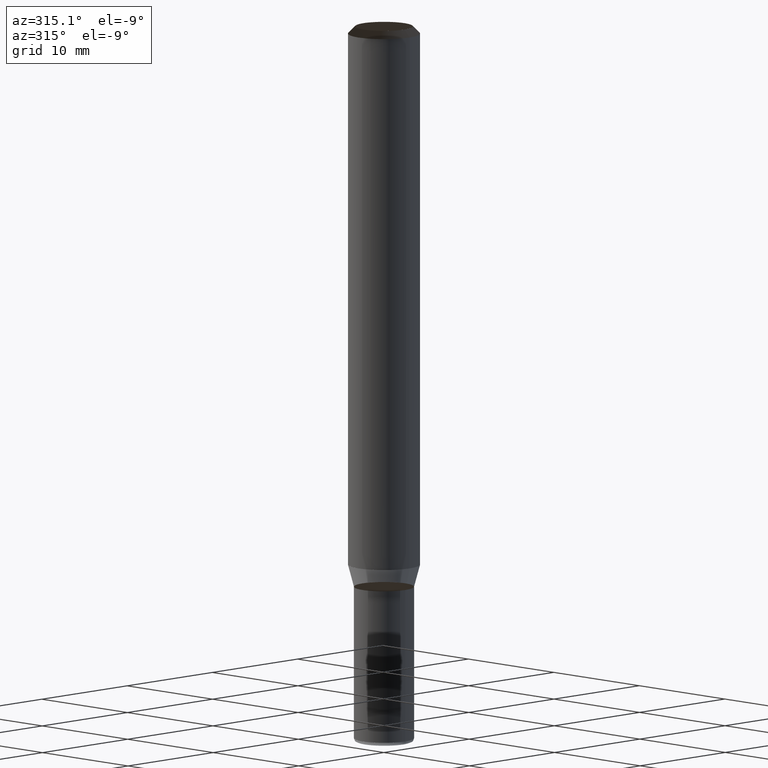
[diagram: clean part render]
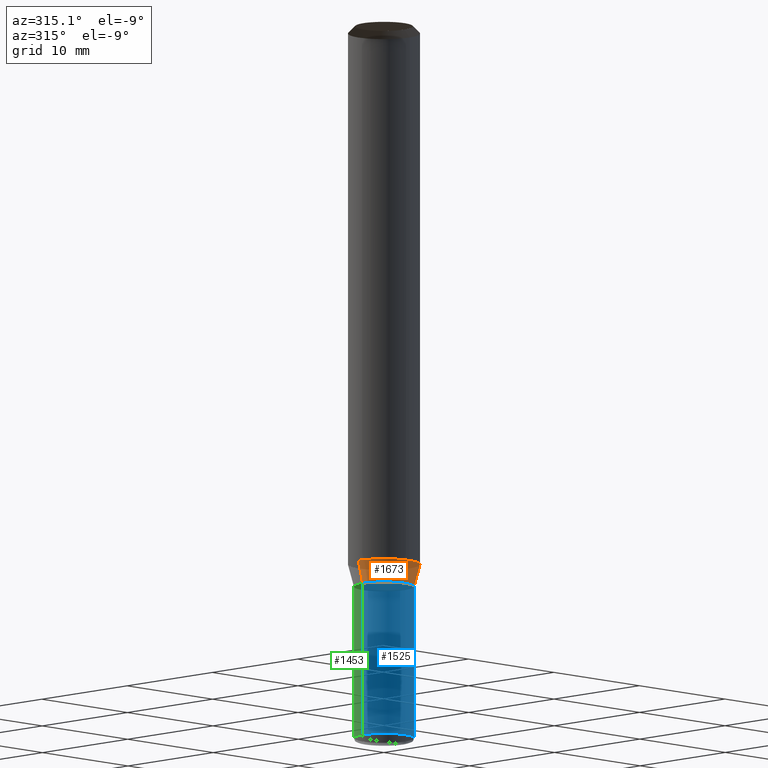
[diagram: same view with three faces highlighted in distinct colors, each labeled with its STEP entity id]
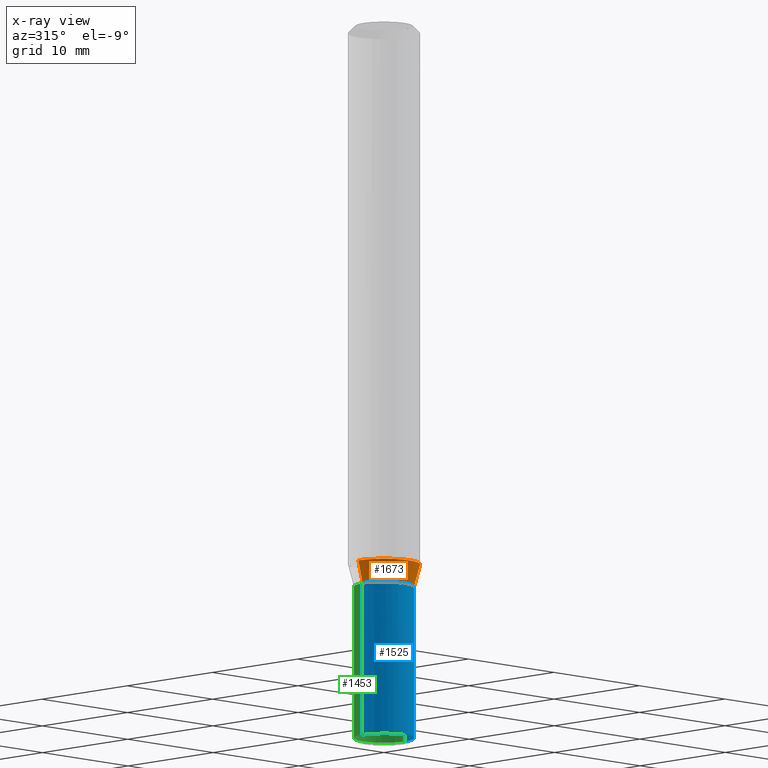
[diagram: x-ray of the same camera — body ghosted, the three highlighted faces saturated]
A machine part, auxiliary view with three faces highlighted in distinct colors.
The next image is the same camera in x-ray (body ghosted, the three faces saturated) — at least one of them is partly hidden behind the body in this view.
Their STEP definitions:

[orange] entity #1673 — the highlighted face is a freeform B-spline surface patch.
#1340=CARTESIAN_POINT('',(2.5,0.0,-1.866025403784));
#1344=CARTESIAN_POINT('',(-2.5,0.0,-1.866025403784));
#1361=CARTESIAN_POINT('',(-2.5,-2.5,-1.866025403784));
#1362=CARTESIAN_POINT('',(0.0,-2.5,-1.866025403784));
#1363=CARTESIAN_POINT('',(2.5,-2.5,-1.866025403784));
#1364=CARTESIAN_POINT('',(3.0,0.0,0.0));
#1368=CARTESIAN_POINT('',(-3.0,0.0,0.0));
#1380=CARTESIAN_POINT('',(-3.0,-3.0,0.0));
#1381=CARTESIAN_POINT('',(0.0,-3.0,0.0));
#1382=CARTESIAN_POINT('',(3.0,-3.0,0.0));
#1654=(
BOUNDED_SURFACE()
B_SPLINE_SURFACE(1,2,(
(#1344,#1361,#1362,#1363,#1340),
(#1368,#1380,#1381,#1382,#1364)
), .UNSPECIFIED.,.F.,.F.,.F.)
B_SPLINE_SURFACE_WITH_KNOTS((2,2),(3,2,3),(
0.0,1.0),(
0.0,0.5,1.0), .UNSPECIFIED.)
GEOMETRIC_REPRESENTATION_ITEM()
RATIONAL_B_SPLINE_SURFACE(((1.0,0.707106781187,1.0,0.707106781187,1.0),
(1.0,0.707106781187,1.0,0.707106781187,1.0)
))
REPRESENTATION_ITEM('')
SURFACE()
);
#1655=(
BOUNDED_CURVE()
B_SPLINE_CURVE(1,(#1368,#1344),.UNSPECIFIED.,.F.,.F.)
B_SPLINE_CURVE_WITH_KNOTS((2,2),
(0.0,1.0),.UNSPECIFIED.)
CURVE()
GEOMETRIC_REPRESENTATION_ITEM()
RATIONAL_B_SPLINE_CURVE((1.0,1.0))
REPRESENTATION_ITEM('')
);
#1656=(
BOUNDED_CURVE()
B_SPLINE_CURVE(2,(#1344,#1361,#1362,#1363,#1340),.UNSPECIFIED.,.F.,.F.)
B_SPLINE_CURVE_WITH_KNOTS((3,2,3),
(0.0,0.5,1.0),.UNSPECIFIED.)
CURVE()
GEOMETRIC_REPRESENTATION_ITEM()
RATIONAL_B_SPLINE_CURVE((1.0,0.707106781187,1.0,0.707106781187,1.0))
REPRESENTATION_ITEM('')
);
#1657=(
BOUNDED_CURVE()
B_SPLINE_CURVE(1,(#1340,#1364),.UNSPECIFIED.,.F.,.F.)
B_SPLINE_CURVE_WITH_KNOTS((2,2),
(0.0,1.0),.UNSPECIFIED.)
CURVE()
GEOMETRIC_REPRESENTATION_ITEM()
RATIONAL_B_SPLINE_CURVE((1.0,1.0))
REPRESENTATION_ITEM('')
);
#1658=(
BOUNDED_CURVE()
B_SPLINE_CURVE(2,(#1364,#1382,#1381,#1380,#1368),.UNSPECIFIED.,.F.,.F.)
B_SPLINE_CURVE_WITH_KNOTS((3,2,3),
(0.0,0.5,1.0),.UNSPECIFIED.)
CURVE()
GEOMETRIC_REPRESENTATION_ITEM()
RATIONAL_B_SPLINE_CURVE((1.0,0.707106781187,1.0,0.707106781187,1.0))
REPRESENTATION_ITEM('')
);
#1659=VERTEX_POINT('',#1340);
#1660=VERTEX_POINT('',#1344);
#1661=VERTEX_POINT('',#1364);
#1662=VERTEX_POINT('',#1368);
#1663=EDGE_CURVE('',#1662,#1660,#1655,.T.);
#1664=EDGE_CURVE('',#1660,#1659,#1656,.T.);
#1665=EDGE_CURVE('',#1659,#1661,#1657,.T.);
#1666=EDGE_CURVE('',#1661,#1662,#1658,.T.);
#1667=ORIENTED_EDGE('',*,*,#1663,.T.);
#1668=ORIENTED_EDGE('',*,*,#1664,.T.);
#1669=ORIENTED_EDGE('',*,*,#1665,.T.);
#1670=ORIENTED_EDGE('',*,*,#1666,.T.);
#1671=EDGE_LOOP('',(#1667,#1668,#1669,#1670));
#1672=FACE_OUTER_BOUND('',#1671,.T.);
#1673=ADVANCED_FACE('',(#1672),#1654,.T.);

[blue] entity #1525 — the highlighted face is a freeform B-spline surface patch.
#1335=CARTESIAN_POINT('',(2.5,0.0,-14.566025403784));
#1339=CARTESIAN_POINT('',(-2.5,0.0,-14.566025403784));
#1340=CARTESIAN_POINT('',(2.5,0.0,-1.866025403784));
#1344=CARTESIAN_POINT('',(-2.5,0.0,-1.866025403784));
#1358=CARTESIAN_POINT('',(-2.5,-2.5,-14.566025403784));
#1359=CARTESIAN_POINT('',(0.0,-2.5,-14.566025403784));
#1360=CARTESIAN_POINT('',(2.5,-2.5,-14.566025403784));
#1361=CARTESIAN_POINT('',(-2.5,-2.5,-1.866025403784));
#1362=CARTESIAN_POINT('',(0.0,-2.5,-1.866025403784));
#1363=CARTESIAN_POINT('',(2.5,-2.5,-1.866025403784));
#1506=(
BOUNDED_SURFACE()
B_SPLINE_SURFACE(1,2,(
(#1339,#1358,#1359,#1360,#1335),
(#1344,#1361,#1362,#1363,#1340)
), .UNSPECIFIED.,.F.,.F.,.F.)
B_SPLINE_SURFACE_WITH_KNOTS((2,2),(3,2,3),(
0.0,1.0),(
0.0,0.5,1.0), .UNSPECIFIED.)
GEOMETRIC_REPRESENTATION_ITEM()
RATIONAL_B_SPLINE_SURFACE(((1.0,0.707106781187,1.0,0.707106781187,1.0),
(1.0,0.707106781187,1.0,0.707106781187,1.0)
))
REPRESENTATION_ITEM('')
SURFACE()
);
#1507=(
BOUNDED_CURVE()
B_SPLINE_CURVE(1,(#1344,#1339),.UNSPECIFIED.,.F.,.F.)
B_SPLINE_CURVE_WITH_KNOTS((2,2),
(0.0,1.0),.UNSPECIFIED.)
CURVE()
GEOMETRIC_REPRESENTATION_ITEM()
RATIONAL_B_SPLINE_CURVE((1.0,1.0))
REPRESENTATION_ITEM('')
);
#1508=(
BOUNDED_CURVE()
B_SPLINE_CURVE(2,(#1339,#1358,#1359,#1360,#1335),.UNSPECIFIED.,.F.,.F.)
B_SPLINE_CURVE_WITH_KNOTS((3,2,3),
(0.0,0.5,1.0),.UNSPECIFIED.)
CURVE()
GEOMETRIC_REPRESENTATION_ITEM()
RATIONAL_B_SPLINE_CURVE((1.0,0.707106781187,1.0,0.707106781187,1.0))
REPRESENTATION_ITEM('')
);
#1509=(
BOUNDED_CURVE()
B_SPLINE_CURVE(1,(#1335,#1340),.UNSPECIFIED.,.F.,.F.)
B_SPLINE_CURVE_WITH_KNOTS((2,2),
(0.0,1.0),.UNSPECIFIED.)
CURVE()
GEOMETRIC_REPRESENTATION_ITEM()
RATIONAL_B_SPLINE_CURVE((1.0,1.0))
REPRESENTATION_ITEM('')
);
#1510=(
BOUNDED_CURVE()
B_SPLINE_CURVE(2,(#1340,#1363,#1362,#1361,#1344),.UNSPECIFIED.,.F.,.F.)
B_SPLINE_CURVE_WITH_KNOTS((3,2,3),
(0.0,0.5,1.0),.UNSPECIFIED.)
CURVE()
GEOMETRIC_REPRESENTATION_ITEM()
RATIONAL_B_SPLINE_CURVE((1.0,0.707106781187,1.0,0.707106781187,1.0))
REPRESENTATION_ITEM('')
);
#1511=VERTEX_POINT('',#1335);
#1512=VERTEX_POINT('',#1339);
#1513=VERTEX_POINT('',#1340);
#1514=VERTEX_POINT('',#1344);
#1515=EDGE_CURVE('',#1514,#1512,#1507,.T.);
#1516=EDGE_CURVE('',#1512,#1511,#1508,.T.);
#1517=EDGE_CURVE('',#1511,#1513,#1509,.T.);
#1518=EDGE_CURVE('',#1513,#1514,#1510,.T.);
#1519=ORIENTED_EDGE('',*,*,#1515,.T.);
#1520=ORIENTED_EDGE('',*,*,#1516,.T.);
#1521=ORIENTED_EDGE('',*,*,#1517,.T.);
#1522=ORIENTED_EDGE('',*,*,#1518,.T.);
#1523=EDGE_LOOP('',(#1519,#1520,#1521,#1522));
#1524=FACE_OUTER_BOUND('',#1523,.T.);
#1525=ADVANCED_FACE('',(#1524),#1506,.T.);

[green] entity #1453 — the highlighted face is a freeform B-spline surface patch.
#1335=CARTESIAN_POINT('',(2.5,0.0,-14.566025403784));
#1336=CARTESIAN_POINT('',(2.5,2.5,-14.566025403784));
#1337=CARTESIAN_POINT('',(0.0,2.5,-14.566025403784));
#1338=CARTESIAN_POINT('',(-2.5,2.5,-14.566025403784));
#1339=CARTESIAN_POINT('',(-2.5,0.0,-14.566025403784));
#1340=CARTESIAN_POINT('',(2.5,0.0,-1.866025403784));
#1341=CARTESIAN_POINT('',(2.5,2.5,-1.866025403784));
#1342=CARTESIAN_POINT('',(0.0,2.5,-1.866025403784));
#1343=CARTESIAN_POINT('',(-2.5,2.5,-1.866025403784));
#1344=CARTESIAN_POINT('',(-2.5,0.0,-1.866025403784));
#1434=(
BOUNDED_SURFACE()
B_SPLINE_SURFACE(1,2,(
(#1335,#1336,#1337,#1338,#1339),
(#1340,#1341,#1342,#1343,#1344)
), .UNSPECIFIED.,.F.,.F.,.F.)
B_SPLINE_SURFACE_WITH_KNOTS((2,2),(3,2,3),(
0.0,1.0),(
0.0,0.5,1.0), .UNSPECIFIED.)
GEOMETRIC_REPRESENTATION_ITEM()
RATIONAL_B_SPLINE_SURFACE(((1.0,0.707106781187,1.0,0.707106781187,1.0),
(1.0,0.707106781187,1.0,0.707106781187,1.0)
))
REPRESENTATION_ITEM('')
SURFACE()
);
#1435=(
BOUNDED_CURVE()
B_SPLINE_CURVE(2,(#1340,#1341,#1342,#1343,#1344),.UNSPECIFIED.,.F.,.F.)
B_SPLINE_CURVE_WITH_KNOTS((3,2,3),
(0.0,0.5,1.0),.UNSPECIFIED.)
CURVE()
GEOMETRIC_REPRESENTATION_ITEM()
RATIONAL_B_SPLINE_CURVE((1.0,0.707106781187,1.0,0.707106781187,1.0))
REPRESENTATION_ITEM('')
);
#1436=(
BOUNDED_CURVE()
B_SPLINE_CURVE(1,(#1344,#1339),.UNSPECIFIED.,.F.,.F.)
B_SPLINE_CURVE_WITH_KNOTS((2,2),
(0.0,1.0),.UNSPECIFIED.)
CURVE()
GEOMETRIC_REPRESENTATION_ITEM()
RATIONAL_B_SPLINE_CURVE((1.0,1.0))
REPRESENTATION_ITEM('')
);
#1437=(
BOUNDED_CURVE()
B_SPLINE_CURVE(2,(#1339,#1338,#1337,#1336,#1335),.UNSPECIFIED.,.F.,.F.)
B_SPLINE_CURVE_WITH_KNOTS((3,2,3),
(0.0,0.5,1.0),.UNSPECIFIED.)
CURVE()
GEOMETRIC_REPRESENTATION_ITEM()
RATIONAL_B_SPLINE_CURVE((1.0,0.707106781187,1.0,0.707106781187,1.0))
REPRESENTATION_ITEM('')
);
#1438=(
BOUNDED_CURVE()
B_SPLINE_CURVE(1,(#1335,#1340),.UNSPECIFIED.,.F.,.F.)
B_SPLINE_CURVE_WITH_KNOTS((2,2),
(0.0,1.0),.UNSPECIFIED.)
CURVE()
GEOMETRIC_REPRESENTATION_ITEM()
RATIONAL_B_SPLINE_CURVE((1.0,1.0))
REPRESENTATION_ITEM('')
);
#1439=VERTEX_POINT('',#1335);
#1440=VERTEX_POINT('',#1339);
#1441=VERTEX_POINT('',#1340);
#1442=VERTEX_POINT('',#1344);
#1443=EDGE_CURVE('',#1441,#1442,#1435,.T.);
#1444=EDGE_CURVE('',#1442,#1440,#1436,.T.);
#1445=EDGE_CURVE('',#1440,#1439,#1437,.T.);
#1446=EDGE_CURVE('',#1439,#1441,#1438,.T.);
#1447=ORIENTED_EDGE('',*,*,#1443,.T.);
#1448=ORIENTED_EDGE('',*,*,#1444,.T.);
#1449=ORIENTED_EDGE('',*,*,#1445,.T.);
#1450=ORIENTED_EDGE('',*,*,#1446,.T.);
#1451=EDGE_LOOP('',(#1447,#1448,#1449,#1450));
#1452=FACE_OUTER_BOUND('',#1451,.T.);
#1453=ADVANCED_FACE('',(#1452),#1434,.T.);